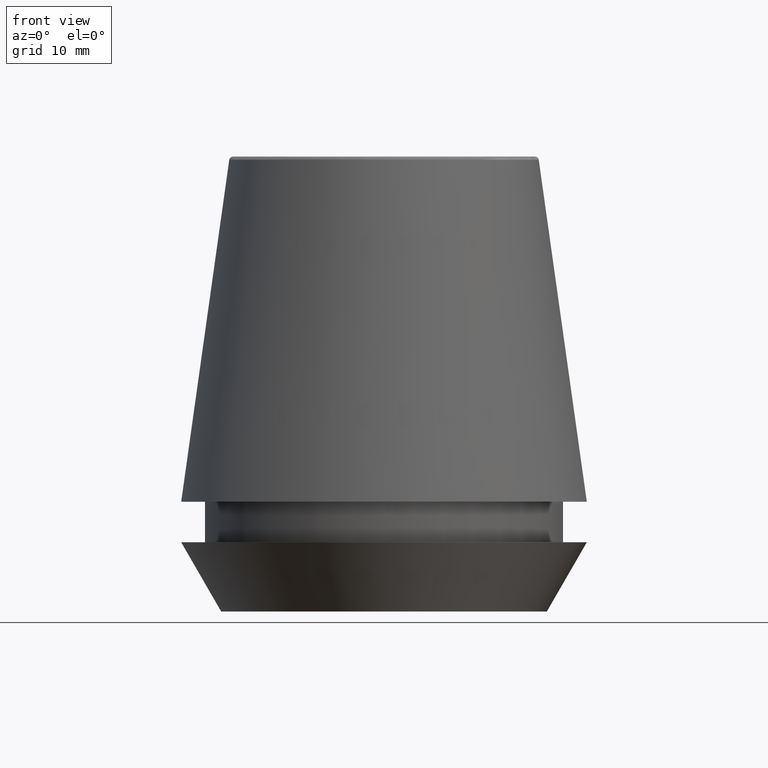
[diagram: clean part render]
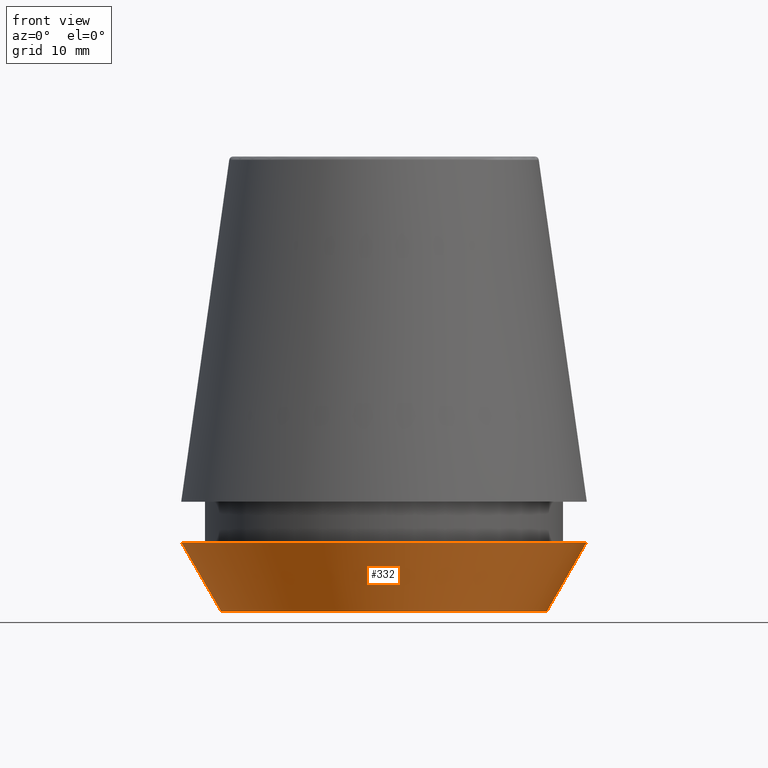
[diagram: same view with one face highlighted and labeled with its STEP entity id]
A machine part, front view. The second image highlights one B-rep face of the part: STEP entity #332.
In plain terms, the highlighted conical surface has half-angle 30 deg.
Its self-contained STEP definition (entity closure, byte-faithful):
#11 = CARTESIAN_POINT ( 'NONE',  ( -20.50000000000000000, 2.510525938252074100E-015, 7.000000000000006200 ) ) ;
#22 = ORIENTED_EDGE ( 'NONE', *, *, #329, .T. ) ;
#44 = DIRECTION ( 'NONE',  ( 0.4999999999999941700, 0.0000000000000000000, 0.8660254037844420400 ) ) ;
#54 = CIRCLE ( 'NONE', #360, 20.50000000000000000 ) ;
#69 = CARTESIAN_POINT ( 'NONE',  ( 20.50000000000000000, 0.0000000000000000000, 7.000000000000006200 ) ) ;
#81 = ORIENTED_EDGE ( 'NONE', *, *, #319, .F. ) ;
#85 = EDGE_CURVE ( 'NONE', #220, #136, #54, .T. ) ;
#99 = ORIENTED_EDGE ( 'NONE', *, *, #85, .F. ) ;
#104 = DIRECTION ( 'NONE',  ( -0.0000000000000000000, -0.0000000000000000000, 1.000000000000000000 ) ) ;
#118 = FACE_OUTER_BOUND ( 'NONE', #273, .T. ) ;
#131 = VERTEX_POINT ( 'NONE', #271 ) ;
#136 = VERTEX_POINT ( 'NONE', #69 ) ;
#141 = VERTEX_POINT ( 'NONE', #323 ) ;
#187 = DIRECTION ( 'NONE',  ( -0.0000000000000000000, -0.0000000000000000000, 1.000000000000000000 ) ) ;
#190 = LINE ( 'NONE', #309, #263 ) ;
#201 = DIRECTION ( 'NONE',  ( 1.000000000000000000, 0.0000000000000000000, 0.0000000000000000000 ) ) ;
#206 = DIRECTION ( 'NONE',  ( 1.000000000000000000, 0.0000000000000000000, 0.0000000000000000000 ) ) ;
#220 = VERTEX_POINT ( 'NONE', #11 ) ;
#221 = CARTESIAN_POINT ( 'NONE',  ( -16.45854811567268100, 2.015590826847124800E-015, 0.0000000000000000000 ) ) ;
#234 = AXIS2_PLACEMENT_3D ( 'NONE', #378, #187, #206 ) ;
#240 = CARTESIAN_POINT ( 'NONE',  ( 0.0000000000000000000, 0.0000000000000000000, 0.0000000000000000000 ) ) ;
#257 = VECTOR ( 'NONE', #312, 1000.000000000000000 ) ;
#263 = VECTOR ( 'NONE', #44, 1000.000000000000000 ) ;
#271 = CARTESIAN_POINT ( 'NONE',  ( 16.45854811567268100, 0.0000000000000000000, 0.0000000000000000000 ) ) ;
#273 = EDGE_LOOP ( 'NONE', ( #81, #333, #22, #99 ) ) ;
#299 = DIRECTION ( 'NONE',  ( 1.000000000000000000, 0.0000000000000000000, 0.0000000000000000000 ) ) ;
#300 = CIRCLE ( 'NONE', #318, 16.45854811567268100 ) ;
#309 = CARTESIAN_POINT ( 'NONE',  ( 16.45854811567268100, 0.0000000000000000000, 0.0000000000000000000 ) ) ;
#311 = EDGE_CURVE ( 'NONE', #141, #131, #300, .T. ) ;
#312 = DIRECTION ( 'NONE',  ( -0.4999999999999941700, 6.123233995736694500E-017, 0.8660254037844420400 ) ) ;
#318 = AXIS2_PLACEMENT_3D ( 'NONE', #240, #350, #201 ) ;
#319 = EDGE_CURVE ( 'NONE', #141, #220, #372, .T. ) ;
#323 = CARTESIAN_POINT ( 'NONE',  ( -16.45854811567268100, 2.263058382549599700E-015, 0.0000000000000000000 ) ) ;
#329 = EDGE_CURVE ( 'NONE', #131, #136, #190, .T. ) ;
#330 = CONICAL_SURFACE ( 'NONE', #234, 16.45854811567268100, 0.5235987755982921500 ) ;
#332 = ADVANCED_FACE ( 'NONE', ( #118 ), #330, .T. ) ;
#333 = ORIENTED_EDGE ( 'NONE', *, *, #311, .T. ) ;
#350 = DIRECTION ( 'NONE',  ( -0.0000000000000000000, -0.0000000000000000000, 1.000000000000000000 ) ) ;
#360 = AXIS2_PLACEMENT_3D ( 'NONE', #365, #104, #299 ) ;
#365 = CARTESIAN_POINT ( 'NONE',  ( 0.0000000000000000000, 0.0000000000000000000, 7.000000000000006200 ) ) ;
#372 = LINE ( 'NONE', #221, #257 ) ;
#378 = CARTESIAN_POINT ( 'NONE',  ( 0.0000000000000000000, 0.0000000000000000000, 0.0000000000000000000 ) ) ;